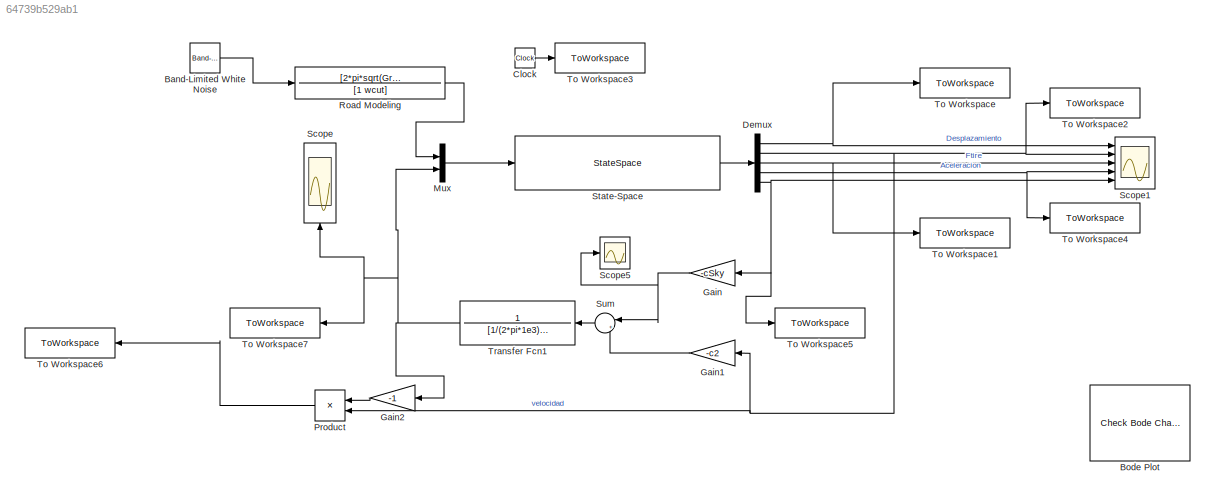
MODEL slx_64739b529ab1
KIND model
CONFIG AbsTol = auto
CONFIG EnableMultiTasking = off
CONFIG FixedStep = auto
CONFIG MaxStep = auto
CONFIG MinStep = auto
CONFIG RelTol = 1e-3
CONFIG SampleTimeConstraint = Unconstrained
CONFIG SolverName = VariableStepAuto
CONFIG StartTime = 0.0
CONFIG StopTime = 10
BLOCK [Reference] Band-Limited White Noise  REF=simulink/Sources/Band-Limited
White Noise
  Ports = [0, 1]
  SourceBlock = simulink/Sources/Band-Limited\nWhite Noise
  SourceProductBaseCode = SL
  SourceType = Band-Limited White Noise.
BLOCK [Reference] Bode Plot  REF=slctrlblks/Model Verification/Check Bode 
Characteristics
  InstantiateOnLoad = on
  Ports = []
  SourceBlock = slctrlblks/Model Verification/Check Bode \nCharacteristics
  SourceProductBaseCode = SD
  SourceType = Checks_Bode
BLOCK [Clock] Clock
  Decimation = 1
BLOCK [Demux] Demux
  Outputs = 5
  Ports = [1, 5]
BLOCK [Gain] Gain
  Gain = -cSky
  NameLocation = top
BLOCK [Gain] Gain1
  Gain = -c2
  NameLocation = top
BLOCK [Gain] Gain2
  Gain = -1
  NameLocation = top
BLOCK [Mux] Mux
  DisplayOption = bar
  Inputs = 2
  Ports = [2, 1]
BLOCK [Product] Product
  NameLocation = top
  Ports = [2, 1]
BLOCK [TransferFcn] Road Modeling 
  Denominator = [1 wcut]
  Numerator = [2*pi*sqrt(Gr*vcar)]
BLOCK [Scope] Scope
  Floating = off
  NameLocation = right
  NumInputPorts = 1
  Ports = [1]
  ScopeSpecificationString = Simulink.scopes.TimeScopeBlockCfg('CurrentConfiguration', extmgr.ConfigurationSet(extmgr.Configuration('Core','General UI',true),extmgr.Configuration('Core','Source UI',true),extmgr.Configuration('Sources','WiredSimulink',true,'DataLoggingVariableName','ScopeData1'),extmgr.Configuration('Visuals','Time Domain',true,'SerializedDisplays',{struct('MinYLimReal','-697.96891','MaxYLimReal','746.10589','...<+1482ch>
BLOCK [Scope] Scope1
  Floating = off
  NumInputPorts = 5
  Ports = [5]
  ScopeSpecificationString = Simulink.scopes.TimeScopeBlockCfg('CurrentConfiguration', extmgr.ConfigurationSet(extmgr.Configuration('Core','General UI',true),extmgr.Configuration('Core','Source UI',true),extmgr.Configuration('Sources','WiredSimulink',true,'DataLoggingVariableName','ScopeData1'),extmgr.Configuration('Visuals','Time Domain',true,'SerializedDisplays',{struct('MinYLimReal','-0.08318','MaxYLimReal','0.06431','YLab...<+6338ch>
BLOCK [Scope] Scope5
  Floating = off
  NumInputPorts = 1
  Ports = [1]
  ScopeSpecificationString = Simulink.scopes.TimeScopeBlockCfg('CurrentConfiguration', extmgr.ConfigurationSet(extmgr.Configuration('Core','General UI',true),extmgr.Configuration('Core','Source UI',true),extmgr.Configuration('Sources','WiredSimulink',true,'DataLoggingVariableName','ScopeData5'),extmgr.Configuration('Visuals','Time Domain',true,'SerializedDisplays',{struct('MinYLimReal','-826.71395','MaxYLimReal','1069.46442',...<+1450ch>
BLOCK [StateSpace] State-Space
  A = SS.A
  B = SS.B
  C = SS.C
  D = SS.D
  InitialCondition = 0
  Ports = [1, 1]
BLOCK [Sum] Sum
  Inputs = |++
  NameLocation = top
  Ports = [2, 1]
BLOCK [ToWorkspace] To Workspace
  FixptAsFi = on
  MaxDataPoints = inf
  Ports = [1]
  SampleTime = 0.001
  VariableName = Disp
BLOCK [ToWorkspace] To Workspace1
  FixptAsFi = on
  MaxDataPoints = inf
  Ports = [1]
  SampleTime = 0.001
  VariableName = Ftire
BLOCK [ToWorkspace] To Workspace2
  FixptAsFi = on
  MaxDataPoints = inf
  Ports = [1]
  SampleTime = 0.001
  VariableName = Vel
BLOCK [ToWorkspace] To Workspace3
  FixptAsFi = on
  MaxDataPoints = inf
  Ports = [1]
  SampleTime = 0.001
  VariableName = time
BLOCK [ToWorkspace] To Workspace4
  FixptAsFi = on
  MaxDataPoints = inf
  Ports = [1]
  SampleTime = 0.001
  VariableName = acel
BLOCK [ToWorkspace] To Workspace5
  FixptAsFi = on
  MaxDataPoints = inf
  Ports = [1]
  SampleTime = 0.001
  VariableName = VelSky
BLOCK [ToWorkspace] To Workspace6
  FixptAsFi = on
  MaxDataPoints = inf
  NameLocation = top
  Ports = [1]
  SampleTime = 0.001
  VariableName = Potact
BLOCK [ToWorkspace] To Workspace7
  FixptAsFi = on
  MaxDataPoints = inf
  NameLocation = top
  Ports = [1]
  SampleTime = 0.001
  VariableName = Fa
BLOCK [TransferFcn] Transfer Fcn1
  Denominator = [1/(2*pi*1e3),1]
  NameLocation = top
  Numerator = 1
LINE Band-Limited White Noise:1 -> Road Modeling :1
LINE Clock:1 -> To Workspace3:1
NET Demux:1 -> Scope1:1, To Workspace:1
NET Demux:2 -> Gain1:1, Product:2, Scope1:2, To Workspace2:1
NET Demux:3 -> Scope1:3, To Workspace1:1
NET Demux:4 -> Scope1:4, To Workspace4:1
NET Demux:5 -> Gain:1, Scope1:5, To Workspace5:1
LINE Gain1:1 -> Sum:2
LINE Gain2:1 -> Product:1
NET Gain:1 -> Scope5:1, Sum:1
LINE Mux:1 -> State-Space:1
LINE Product:1 -> To Workspace6:1
LINE Road Modeling :1 -> Mux:1
LINE State-Space:1 -> Demux:1
LINE Sum:1 -> Transfer Fcn1:1
NET Transfer Fcn1:1 -> Gain2:1, Mux:2, Scope:1, To Workspace7:1
note: NET lines group one-source signal fan-out (src -> all destinations, sorted); 1:1 wires keep LINE
